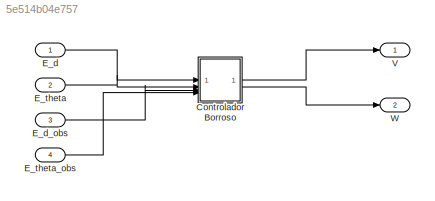
MODEL slx_5e514b04e757
KIND model
CONFIG AbsTol = auto
CONFIG EnableMultiTasking = off
CONFIG FixedStep = auto
CONFIG MaxStep = auto
CONFIG MinStep = auto
CONFIG RelTol = 1e-3
CONFIG SampleTimeConstraint = Unconstrained
CONFIG SolverName = VariableStepAuto
CONFIG StartTime = 0.0
CONFIG StopTime = 10.0
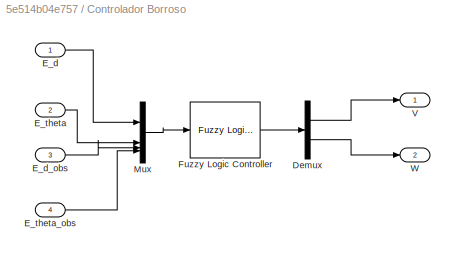
BLOCK [SubSystem] Controlador Borroso
BLOCK [Demux] Controlador Borroso/Demux
  Outputs = 2
BLOCK [Inport] Controlador Borroso/E_d
BLOCK [Inport] Controlador Borroso/E_d_obs
  Port = 3
BLOCK [Inport] Controlador Borroso/E_theta
  Port = 2
BLOCK [Inport] Controlador Borroso/E_theta_obs
  Port = 4
BLOCK [Reference] Controlador Borroso/Fuzzy Logic Controller  REF=fuzblock/Fuzzy Logic   (lib defined in mdl_858b3b3e7478)
Controller
  SourceBlock = fuzblock/Fuzzy Logic \nController
  SourceType = Fuzzy Inference System
BLOCK [Mux] Controlador Borroso/Mux
  DisplayOption = bar
BLOCK [Outport] Controlador Borroso/V
BLOCK [Outport] Controlador Borroso/W
  Port = 2
BLOCK [Inport] E_d
BLOCK [Inport] E_d_obs
  Port = 3
BLOCK [Inport] E_theta
  Port = 2
BLOCK [Inport] E_theta_obs
  Port = 4
BLOCK [Outport] V
BLOCK [Outport] W
  Port = 2
LINE Controlador Borroso/Demux:1 -> Controlador Borroso/V:1
LINE Controlador Borroso/Demux:2 -> Controlador Borroso/W:1
LINE Controlador Borroso/E_d:1 -> Controlador Borroso/Mux:1
LINE Controlador Borroso/E_d_obs:1 -> Controlador Borroso/Mux:3
LINE Controlador Borroso/E_theta:1 -> Controlador Borroso/Mux:2
LINE Controlador Borroso/E_theta_obs:1 -> Controlador Borroso/Mux:4
LINE Controlador Borroso/Fuzzy Logic Controller:1 -> Controlador Borroso/Demux:1
LINE Controlador Borroso/Mux:1 -> Controlador Borroso/Fuzzy Logic Controller:1
LINE Controlador Borroso:1 -> V:1
LINE Controlador Borroso:2 -> W:1
LINE E_d:1 -> Controlador Borroso:1
LINE E_d_obs:1 -> Controlador Borroso:3
LINE E_theta:1 -> Controlador Borroso:2
LINE E_theta_obs:1 -> Controlador Borroso:4
